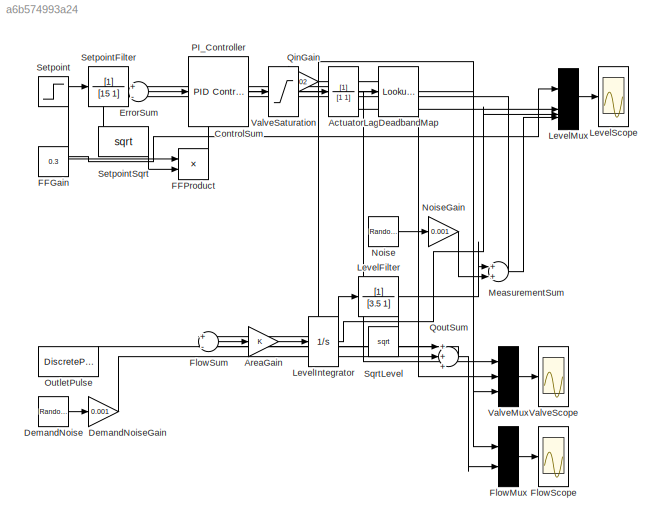
MODEL slx_a6b574993a24
KIND model
CONFIG AbsTol = auto
CONFIG EnableMultiTasking = off
CONFIG FixedStep = auto
CONFIG MaxStep = auto
CONFIG MinStep = auto
CONFIG RelTol = 1e-3
CONFIG SampleTimeConstraint = Unconstrained
CONFIG SolverName = ode45
CONFIG StartTime = 0.0
CONFIG StopTime = 600
BLOCK [TransferFcn] ActuatorLag
  Denominator = [1 1]
BLOCK [Gain] AreaGain
BLOCK [Sum] ControlSum
BLOCK [Lookup_n-D] DeadbandMap
  BreakpointsForDimension1 = [0 1]
  InputPortMap = u0
  InternalRulePriority = Speed
  NumberOfTableDimensions = 1
  RndMeth = Simplest
  Table = [0 1]
BLOCK [RandomNumber] DemandNoise
  SampleTime = 0.1
  Seed = 1
BLOCK [Gain] DemandNoiseGain
  Gain = 0.001
BLOCK [Sum] ErrorSum
  Inputs = +-
BLOCK [Constant] FFGain
  Value = 0.3
BLOCK [Product] FFProduct
  Inputs = **
BLOCK [Mux] FlowMux
  DisplayOption = bar
  Inputs = 2
BLOCK [Scope] FlowScope
  DataLogging = on
  DataLoggingVariableName = flow_scope
  Floating = off
  GraphicalSettings = {"GraphicalSettings":{"LegacySettings":true,"Style":{"Style":{"PlotType":"Auto"}}}}
  NumInputPorts = 1
  OpenAtSimulationStart = on
  TimeSpan = 600
  WasSavedAsWebScope = on
BLOCK [Sum] FlowSum
  Inputs = +-
BLOCK [TransferFcn] LevelFilter
  Denominator = [3.5 1]
BLOCK [Integrator] LevelIntegrator
  InitialCondition = 0.5
  LimitOutput = on
  LowerSaturationLimit = 0
  UpperSaturationLimit = 2
BLOCK [Mux] LevelMux
  DisplayOption = bar
BLOCK [Scope] LevelScope
  DataLogging = on
  DataLoggingVariableName = level_scope
  Floating = off
  GraphicalSettings = {"GraphicalSettings":{"LegacySettings":true,"Style":{"Style":{"PlotType":"Auto"}}}}
  NumInputPorts = 1
  OpenAtSimulationStart = on
  TimeSpan = 600
  WasSavedAsWebScope = on
BLOCK [Sum] MeasurementSum
BLOCK [RandomNumber] Noise
  SampleTime = 0.01
BLOCK [Gain] NoiseGain
  Gain = 0.001
BLOCK [DiscretePulseGenerator] OutletPulse
  Amplitude = 0.01
  Period = 60
  PulseType = Time based
  PulseWidth = 50
  SampleTime = 0.01
BLOCK [Reference] PI_Controller  REF=slpidlib/PID Controller
  SourceBlock = slpidlib/PID Controller
  SourceType = PID 1dof
BLOCK [Gain] QinGain
  Gain = 0.02
BLOCK [Sum] QoutSum
  Inputs = +++
BLOCK [Step] Setpoint
  After = 0.55
  Before = 0.5
  SampleTime = 0
  Time = 200
BLOCK [TransferFcn] SetpointFilter
  Denominator = [15 1]
BLOCK [Math] SetpointSqrt
  Operator = sqrt
BLOCK [Math] SqrtLevel
  Operator = sqrt
BLOCK [Mux] ValveMux
  DisplayOption = bar
  Inputs = 3
BLOCK [Saturate] ValveSaturation
  LowerLimit = 0
  UpperLimit = 1
BLOCK [Scope] ValveScope
  DataLogging = on
  DataLoggingVariableName = valve_scope
  Floating = off
  GraphicalSettings = {"GraphicalSettings":{"LegacySettings":true,"Style":{"Style":{"PlotType":"Auto"}}}}
  NumInputPorts = 1
  OpenAtSimulationStart = on
  TimeSpan = 600
  WasSavedAsWebScope = on
NET ActuatorLag:1 -> DeadbandMap:1, ValveMux:2
LINE AreaGain:1 -> LevelIntegrator:1
NET ControlSum:1 -> ValveMux:1, ValveSaturation:1
NET DeadbandMap:1 -> QinGain:1, ValveMux:3
LINE DemandNoise:1 -> DemandNoiseGain:1
LINE DemandNoiseGain:1 -> QoutSum:2
LINE ErrorSum:1 -> PI_Controller:1
LINE FFGain:1 -> FFProduct:1
LINE FFProduct:1 -> ControlSum:2
LINE FlowMux:1 -> FlowScope:1
LINE FlowSum:1 -> AreaGain:1
NET LevelFilter:1 -> MeasurementSum:1, SqrtLevel:1
NET LevelIntegrator:1 -> LevelFilter:1, LevelMux:3
LINE LevelMux:1 -> LevelScope:1
NET MeasurementSum:1 -> ErrorSum:2, LevelMux:4
LINE Noise:1 -> NoiseGain:1
LINE NoiseGain:1 -> MeasurementSum:2
LINE OutletPulse:1 -> QoutSum:1
LINE PI_Controller:1 -> ControlSum:1
NET QinGain:1 -> FlowMux:1, FlowSum:1
NET QoutSum:1 -> FlowMux:2, FlowSum:2
NET Setpoint:1 -> LevelMux:1, SetpointFilter:1
NET SetpointFilter:1 -> ErrorSum:1, LevelMux:2, SetpointSqrt:1
LINE SetpointSqrt:1 -> FFProduct:2
LINE ValveMux:1 -> ValveScope:1
LINE ValveSaturation:1 -> ActuatorLag:1
note: NET lines group one-source signal fan-out (src -> all destinations, sorted); 1:1 wires keep LINE
